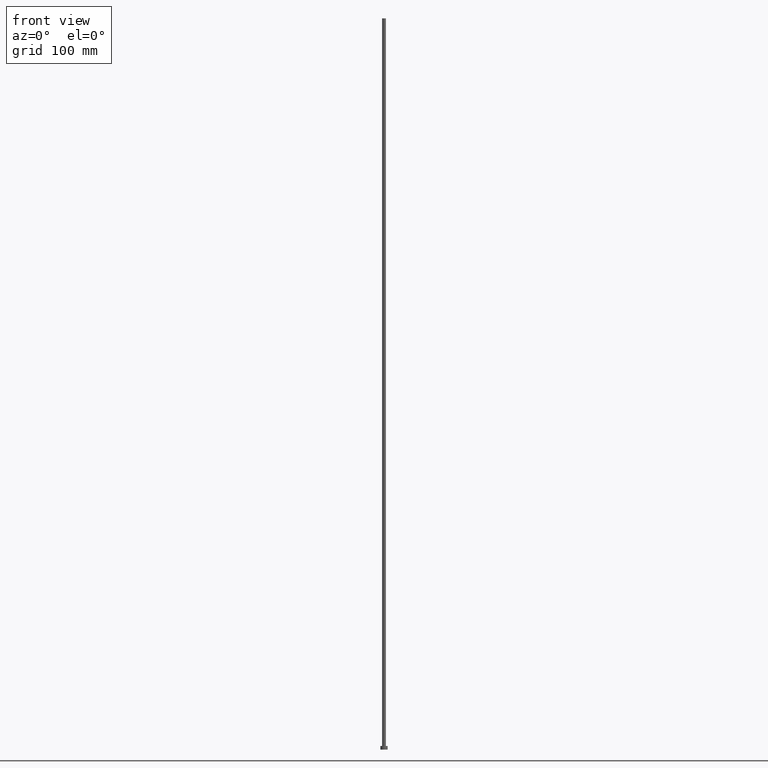
[diagram: clean part render]
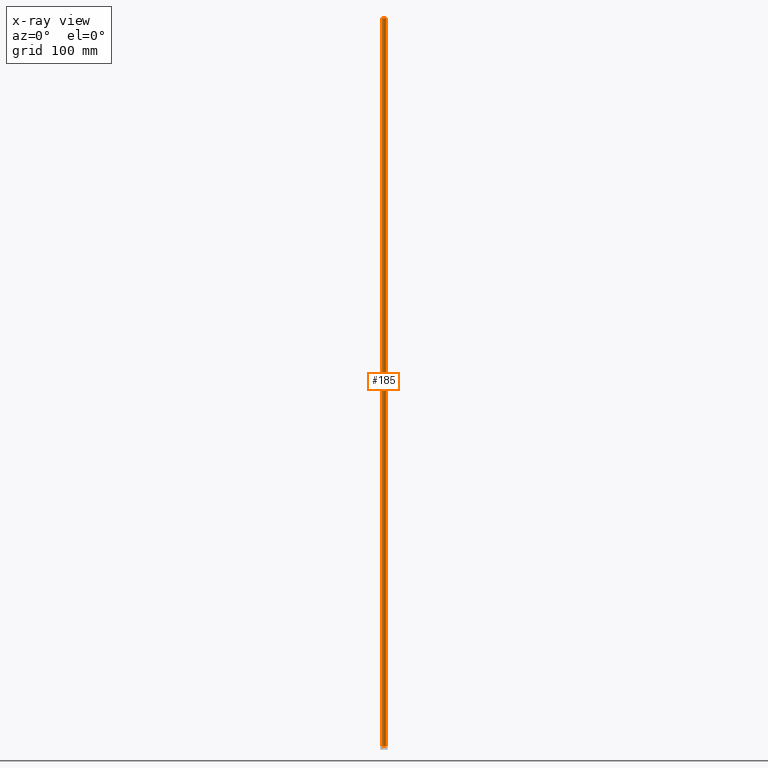
[diagram: x-ray — body ghosted, one internal face saturated and labeled with its STEP entity id]
A machine part, front view, then the same camera in x-ray: the body is ghosted and one INTERNAL B-rep face — a face not visible from any outside direction — is saturated and labeled: STEP entity #185.
In plain terms, the highlighted cylindrical surface (edge-blend (fillet) strip) has radius 2.1 mm, axis along (-0, -0, -1).
Its self-contained STEP definition (entity closure, byte-faithful):
#8 = CARTESIAN_POINT ( 'NONE',  ( 2.100000000000000089, 2.571758278209441957E-16, 800.0000000000000000 ) ) ;
#11 = AXIS2_PLACEMENT_3D ( 'NONE', #87, #184, #167 ) ;
#15 = EDGE_LOOP ( 'NONE', ( #190, #131, #228, #195 ) ) ;
#18 = CARTESIAN_POINT ( 'NONE',  ( 0.000000000000000000, 0.000000000000000000, 800.0000000000000000 ) ) ;
#19 = CIRCLE ( 'NONE', #11, 2.100000000000000089 ) ;
#23 = EDGE_CURVE ( 'NONE', #138, #255, #112, .T. ) ;
#39 = CARTESIAN_POINT ( 'NONE',  ( 2.100000000000000089, 2.571758278209441957E-16, 800.0000000000000000 ) ) ;
#41 = DIRECTION ( 'NONE',  ( 1.000000000000000000, 0.000000000000000000, 0.000000000000000000 ) ) ;
#46 = CARTESIAN_POINT ( 'NONE',  ( -2.100000000000000089, 0.000000000000000000, 800.0000000000000000 ) ) ;
#48 = VERTEX_POINT ( 'NONE', #124 ) ;
#57 = EDGE_CURVE ( 'NONE', #177, #48, #150, .T. ) ;
#64 = DIRECTION ( 'NONE',  ( 0.000000000000000000, 0.000000000000000000, 1.000000000000000000 ) ) ;
#68 = EDGE_CURVE ( 'NONE', #255, #48, #19, .T. ) ;
#73 = CARTESIAN_POINT ( 'NONE',  ( 2.100000000000000089, 2.571758278209441957E-16, 4.000000000000000000 ) ) ;
#87 = CARTESIAN_POINT ( 'NONE',  ( 0.000000000000000000, 0.000000000000000000, 4.000000000000000000 ) ) ;
#92 = CYLINDRICAL_SURFACE ( 'NONE', #128, 2.100000000000000089 ) ;
#95 = CARTESIAN_POINT ( 'NONE',  ( 0.000000000000000000, 0.000000000000000000, 800.0000000000000000 ) ) ;
#97 = DIRECTION ( 'NONE',  ( -1.000000000000000000, 0.000000000000000000, 0.000000000000000000 ) ) ;
#112 = LINE ( 'NONE', #8, #132 ) ;
#116 = CIRCLE ( 'NONE', #208, 2.100000000000000089 ) ;
#124 = CARTESIAN_POINT ( 'NONE',  ( -2.100000000000000089, 0.000000000000000000, 4.000000000000000000 ) ) ;
#126 = DIRECTION ( 'NONE',  ( -0.000000000000000000, -0.000000000000000000, -1.000000000000000000 ) ) ;
#128 = AXIS2_PLACEMENT_3D ( 'NONE', #95, #174, #97 ) ;
#130 = FACE_OUTER_BOUND ( 'NONE', #15, .T. ) ;
#131 = ORIENTED_EDGE ( 'NONE', *, *, #23, .T. ) ;
#132 = VECTOR ( 'NONE', #126, 1000.000000000000000 ) ;
#138 = VERTEX_POINT ( 'NONE', #39 ) ;
#140 = EDGE_CURVE ( 'NONE', #138, #177, #116, .T. ) ;
#143 = VECTOR ( 'NONE', #204, 1000.000000000000000 ) ;
#149 = CARTESIAN_POINT ( 'NONE',  ( -2.100000000000000089, 0.000000000000000000, 800.0000000000000000 ) ) ;
#150 = LINE ( 'NONE', #149, #143 ) ;
#167 = DIRECTION ( 'NONE',  ( 1.000000000000000000, 0.000000000000000000, 0.000000000000000000 ) ) ;
#174 = DIRECTION ( 'NONE',  ( -0.000000000000000000, -0.000000000000000000, -1.000000000000000000 ) ) ;
#177 = VERTEX_POINT ( 'NONE', #46 ) ;
#184 = DIRECTION ( 'NONE',  ( 0.000000000000000000, 0.000000000000000000, 1.000000000000000000 ) ) ;
#185 = ADVANCED_FACE ( 'NONE', ( #130 ), #92, .T. ) ;
#190 = ORIENTED_EDGE ( 'NONE', *, *, #140, .F. ) ;
#195 = ORIENTED_EDGE ( 'NONE', *, *, #57, .F. ) ;
#204 = DIRECTION ( 'NONE',  ( -0.000000000000000000, -0.000000000000000000, -1.000000000000000000 ) ) ;
#208 = AXIS2_PLACEMENT_3D ( 'NONE', #18, #64, #41 ) ;
#228 = ORIENTED_EDGE ( 'NONE', *, *, #68, .T. ) ;
#255 = VERTEX_POINT ( 'NONE', #73 ) ;